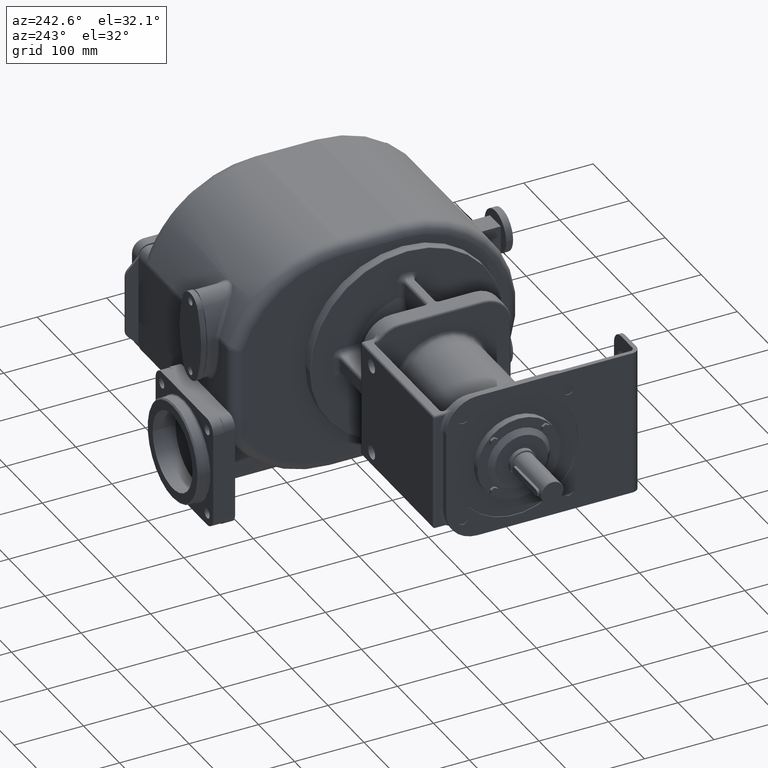
[diagram: clean part render]
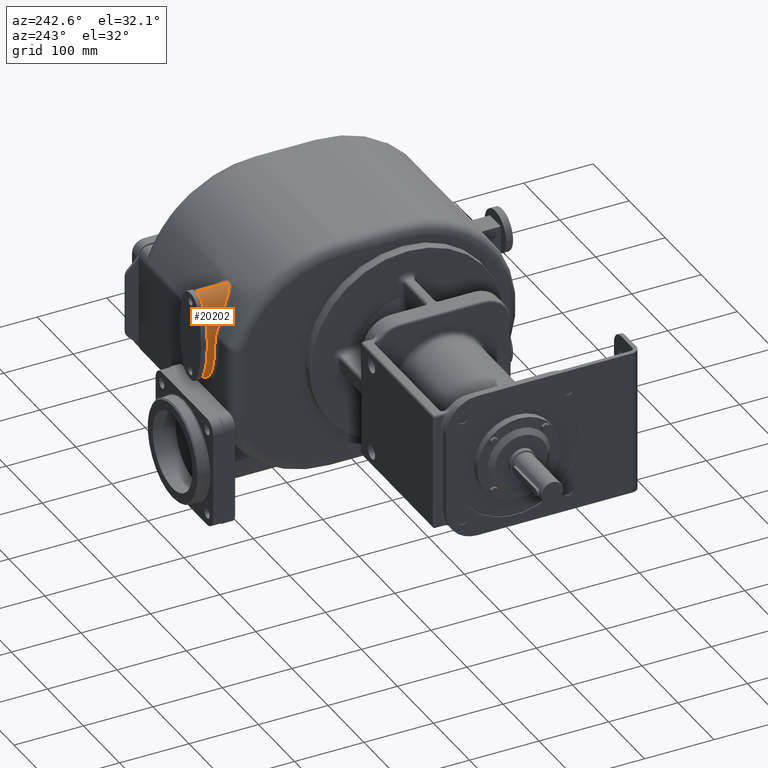
[diagram: same view with one face highlighted and labeled with its STEP entity id]
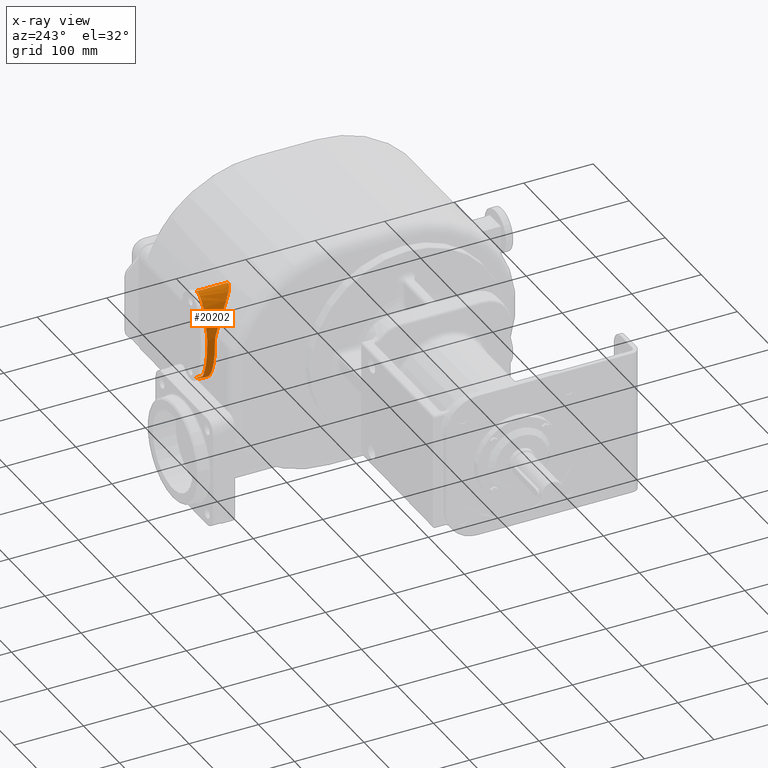
[diagram: x-ray of the same camera — body ghosted, the highlighted face saturated]
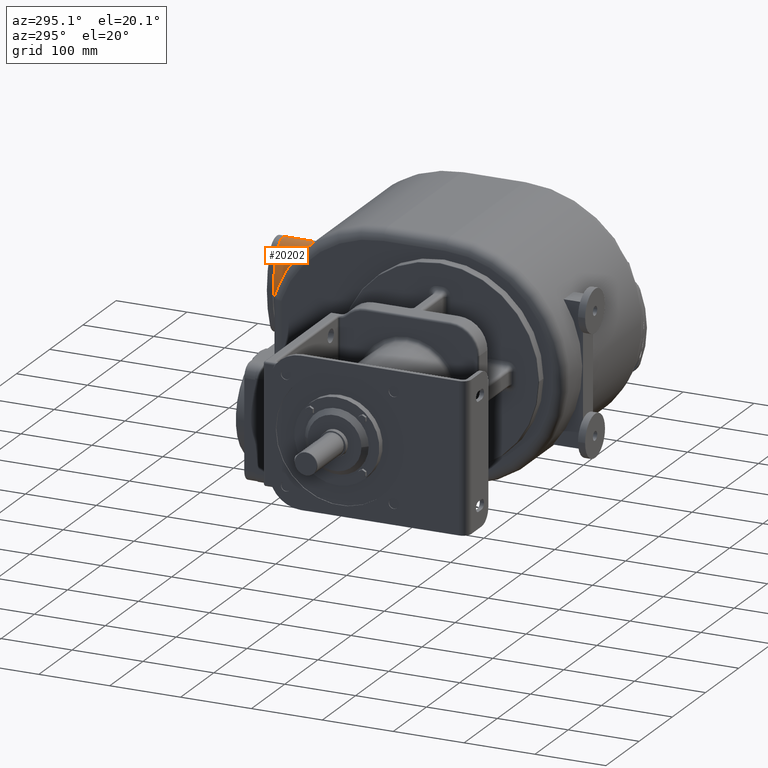
[diagram: same view with one face highlighted and labeled with its STEP entity id]
A machine part, auxiliary view. The second image highlights one B-rep face of the part: STEP entity #20202.
The next image is the same camera in x-ray: the body ghosted, the highlighted face saturated — about 0% of this face is hidden behind the body in this view.
A second angle (auxiliary view) of the same face is appended — the face is thin or edge-on in the first view.
In plain terms, the highlighted face is a SurfaceOfExtrusion surface.
Its self-contained STEP definition (entity closure, byte-faithful):
#5250=CARTESIAN_POINT('',(-2.959127350150E1,4.180277563773E2,5.369300654447E1));
#5251=CARTESIAN_POINT('',(-2.953547731915E1,4.177794050641E2,5.441790817019E1));
#5252=CARTESIAN_POINT('',(-2.941250789738E1,4.172724683833E2,5.586383989972E1));
#5253=CARTESIAN_POINT('',(-2.919407153236E1,4.164821647968E2,5.801925154103E1));
#5254=CARTESIAN_POINT('',(-2.894191263813E1,4.156632165754E2,6.015799064301E1));
#5255=CARTESIAN_POINT('',(-2.865634146213E1,4.148169051282E2,6.227726614286E1));
#5256=CARTESIAN_POINT('',(-2.833773882775E1,4.139446090409E2,6.437419904726E1));
#5257=CARTESIAN_POINT('',(-2.798653758930E1,4.130479190375E2,6.644604693218E1));
#5258=CARTESIAN_POINT('',(-2.760318697061E1,4.121285224983E2,6.849031987056E1));
#5259=CARTESIAN_POINT('',(-2.718828013296E1,4.111884039467E2,7.050406057810E1));
#5260=CARTESIAN_POINT('',(-2.674289735316E1,4.102304926898E2,7.248264154252E1));
#5261=CARTESIAN_POINT('',(-2.626824763129E1,4.092577993437E2,7.442191021712E1));
#5262=CARTESIAN_POINT('',(-2.576535654304E1,4.082729788011E2,7.631915051693E1));
#5263=CARTESIAN_POINT('',(-2.523537641659E1,4.072787984379E2,7.817158770588E1));
#5264=CARTESIAN_POINT('',(-2.467956279720E1,4.062780634538E2,7.997655455188E1));
#5265=CARTESIAN_POINT('',(-2.409933340986E1,4.052737923284E2,8.173130897729E1));
#5266=CARTESIAN_POINT('',(-2.349652269954E1,4.042697900355E2,8.343243807606E1));
#5267=CARTESIAN_POINT('',(-2.287316109284E1,4.032698655736E2,8.507670507127E1));
#5268=CARTESIAN_POINT('',(-2.223156519487E1,4.022779152928E2,8.666086146402E1));
#5269=CARTESIAN_POINT('',(-2.157415864846E1,4.012978248948E2,8.818215672986E1));
#5270=CARTESIAN_POINT('',(-2.090342222491E1,4.003335122164E2,8.963838701122E1));
#5271=CARTESIAN_POINT('',(-2.022209026508E1,3.993888025004E2,9.102742554513E1));
#5272=CARTESIAN_POINT('',(-1.953340959060E1,3.984676577245E2,9.234686959138E1));
#5273=CARTESIAN_POINT('',(-1.883965760985E1,3.975726752964E2,9.359681714817E1));
#5274=CARTESIAN_POINT('',(-1.814258063415E1,3.967057622274E2,9.477846890317E1));
#5275=CARTESIAN_POINT('',(-1.744418444779E1,3.958687681379E2,9.589267497383E1));
#5276=CARTESIAN_POINT('',(-1.674647276695E1,3.950630834828E2,9.694044627662E1));
#5277=CARTESIAN_POINT('',(-1.605221929910E1,3.942912084144E2,9.792187148024E1));
#5278=CARTESIAN_POINT('',(-1.536484234584E1,3.935560943852E2,9.883666181759E1));
#5279=CARTESIAN_POINT('',(-1.468631678839E1,3.928585148535E2,9.968683948255E1));
#5280=CARTESIAN_POINT('',(-1.401862055296E1,3.921987872934E2,1.004744822760E2));
#5281=CARTESIAN_POINT('',(-1.336288926813E1,3.915765484495E2,1.012026722612E2));
#5282=CARTESIAN_POINT('',(-1.271993108675E1,3.909915056442E2,1.018746676156E2));
#5283=CARTESIAN_POINT('',(-1.209076685045E1,3.904431240749E2,1.024933368134E2));
#5284=CARTESIAN_POINT('',(-1.147647685030E1,3.899307316574E2,1.030613927547E2));
#5285=CARTESIAN_POINT('',(-1.087795355558E1,3.894531481219E2,1.035816390387E2));
#5286=CARTESIAN_POINT('',(-1.029551819477E1,3.890093463393E2,1.040572211045E2));
#5287=CARTESIAN_POINT('',(-9.729585948869E0,3.885983805573E2,1.044910146138E2));
#5288=CARTESIAN_POINT('',(-9.179903069087E0,3.882186063868E2,1.048862075701E2));
#5289=CARTESIAN_POINT('',(-8.645869005953E0,3.878681395808E2,1.052459503320E2));
#5290=CARTESIAN_POINT('',(-8.126656010431E0,3.875449625093E2,1.055732301116E2));
#5291=CARTESIAN_POINT('',(-7.622408111086E0,3.872477989221E2,1.058701847816E2));
#5292=CARTESIAN_POINT('',(-7.133324048029E0,3.869757490403E2,1.061388207522E2));
#5293=CARTESIAN_POINT('',(-6.659360035865E0,3.867276193994E2,1.063811772179E2));
#5294=CARTESIAN_POINT('',(-6.199312135897E0,3.865016564328E2,1.065996985310E2));
#5295=CARTESIAN_POINT('',(-5.751813612489E0,3.862961566022E2,1.067966239521E2));
#5296=CARTESIAN_POINT('',(-5.314991002102E0,3.861093649653E2,1.069741124538E2));
#5297=CARTESIAN_POINT('',(-4.888380802136E0,3.859402954536E2,1.071335002740E2));
#5298=CARTESIAN_POINT('',(-4.471940760248E0,3.857880651916E2,1.072758904942E2));
#5299=CARTESIAN_POINT('',(-4.065520460429E0,3.856518248275E2,1.074023683167E2));
#5300=CARTESIAN_POINT('',(-3.668590770231E0,3.855306623410E2,1.075140627771E2));
#5301=CARTESIAN_POINT('',(-3.280047006425E0,3.854236039345E2,1.076121367150E2));
#5302=CARTESIAN_POINT('',(-2.898702469705E0,3.853298022805E2,1.076976124634E2));
#5303=CARTESIAN_POINT('',(-2.523038362179E0,3.852484912524E2,1.077714128514E2));
#5304=CARTESIAN_POINT('',(-2.152171558388E0,3.851792098426E2,1.078341713163E2));
#5305=CARTESIAN_POINT('',(-1.785686472190E0,3.851216331612E2,1.078863585360E2));
#5306=CARTESIAN_POINT('',(-1.423091178117E0,3.850751666986E2,1.079283990381E2));
#5307=CARTESIAN_POINT('',(-1.063853330627E0,3.850394128378E2,1.079606618174E2));
#5308=CARTESIAN_POINT('',(-7.073402477227E-1,3.850139563523E2,
1.079834471729E2));
#5309=CARTESIAN_POINT('',(-3.529718520219E-1,3.849988726882E2,
1.079970199175E2));
#5310=CARTESIAN_POINT('',(-1.174863340934E-1,3.849949115535E2,
1.079999725309E2));
#5311=CARTESIAN_POINT('',(0.E0,3.849948209448E2,1.08E2));
#5313=CARTESIAN_POINT('',(-2.991598029119E1,4.189999999994E2,4.786161405910E1));
#5314=CARTESIAN_POINT('',(-2.990973077321E1,4.189999561263E2,4.804223551395E1));
#5315=CARTESIAN_POINT('',(-2.989652112312E1,4.189940599213E2,4.840302011867E1));
#5316=CARTESIAN_POINT('',(-2.987469619031E1,4.189697363214E2,4.894292556024E1));
#5317=CARTESIAN_POINT('',(-2.985084388433E1,4.189291419110E2,4.948111985827E1));
#5318=CARTESIAN_POINT('',(-2.982500634066E1,4.188725903222E2,5.001731603987E1));
#5319=CARTESIAN_POINT('',(-2.979721502010E1,4.188000636789E2,5.055119624389E1));
#5320=CARTESIAN_POINT('',(-2.976751084707E1,4.187116027509E2,5.108243487979E1));
#5321=CARTESIAN_POINT('',(-2.973593244029E1,4.186071774466E2,5.161079805599E1));
#5322=CARTESIAN_POINT('',(-2.970251270218E1,4.184868397560E2,5.213620450278E1));
#5323=CARTESIAN_POINT('',(-2.966728350822E1,4.183506229650E2,5.265854781615E1));
#5324=CARTESIAN_POINT('',(-2.963029153513E1,4.181984661024E2,5.317770967500E1));
#5325=CARTESIAN_POINT('',(-2.960445551251E1,4.180864676228E2,5.352162032648E1));
#5326=CARTESIAN_POINT('',(-2.959126423860E1,4.180277563774E2,5.369300583161E1));
#5328=CARTESIAN_POINT('',(0.E0,4.19E2,-2.2E1));
#5329=CARTESIAN_POINT('',(-5.142688421279E-1,4.19E2,-2.2E1));
#5330=CARTESIAN_POINT('',(-1.542806457136E0,4.19E2,-2.194268500738E1));
#5331=CARTESIAN_POINT('',(-3.081533536568E0,4.19E2,-2.168499486401E1));
#5332=CARTESIAN_POINT('',(-4.612112590105E0,4.19E2,-2.125626843543E1));
#5333=CARTESIAN_POINT('',(-6.130496568917E0,4.19E2,-2.065763933503E1));
#5334=CARTESIAN_POINT('',(-7.632670645709E0,4.19E2,-1.989069042290E1));
#5335=CARTESIAN_POINT('',(-9.114662860886E0,4.19E2,-1.895744962056E1));
#5336=CARTESIAN_POINT('',(-1.057255461683E1,4.19E2,-1.786038454883E1));
#5337=CARTESIAN_POINT('',(-1.200249104142E1,4.19E2,-1.660239600309E1));
#5338=CARTESIAN_POINT('',(-1.340069118024E1,4.19E2,-1.518681028318E1));
#5339=CARTESIAN_POINT('',(-1.476345799418E1,4.19E2,-1.361737039818E1));
#5340=CARTESIAN_POINT('',(-1.608718813481E1,4.19E2,-1.189822616936E1));
#5341=CARTESIAN_POINT('',(-1.736838147221E1,4.19E2,-1.003392325747E1));
#5342=CARTESIAN_POINT('',(-1.860365034981E1,4.19E2,-8.029391143378E0));
#5343=CARTESIAN_POINT('',(-1.978972854178E1,4.19E2,-5.889930093824E0));
#5344=CARTESIAN_POINT('',(-2.092347988944E1,4.19E2,-3.621197146747E0));
#5345=CARTESIAN_POINT('',(-2.200190659371E1,4.19E2,-1.229191153290E0));
#5346=CARTESIAN_POINT('',(-2.302215714168E1,4.19E2,1.279763084015E0));
#5347=CARTESIAN_POINT('',(-2.398153384644E1,4.19E2,3.899031534919E0));
#5348=CARTESIAN_POINT('',(-2.487749998016E1,4.19E2,6.621688482776E0));
#5349=CARTESIAN_POINT('',(-2.570768648151E1,4.19E2,9.440534837111E0));
#5350=CARTESIAN_POINT('',(-2.646989821983E1,4.19E2,1.234811716904E1));
#5351=CARTESIAN_POINT('',(-2.716211979937E1,4.19E2,1.533674741920E1));
#5352=CARTESIAN_POINT('',(-2.778252088826E1,4.19E2,1.839852322603E1));
#5353=CARTESIAN_POINT('',(-2.832946105818E1,4.19E2,2.152534882080E1));
#5354=CARTESIAN_POINT('',(-2.880149412188E1,4.19E2,2.470895643390E1));
#5355=CARTESIAN_POINT('',(-2.919737195709E1,4.19E2,2.794092815598E1));
#5356=CARTESIAN_POINT('',(-2.951604780677E1,4.19E2,3.121271819641E1));
#5357=CARTESIAN_POINT('',(-2.975667904688E1,4.19E2,3.451567547828E1));
#5358=CARTESIAN_POINT('',(-2.991862941424E1,4.19E2,3.784106651779E1));
#5359=CARTESIAN_POINT('',(-3.000147068953E1,4.19E2,4.118009849926E1));
#5360=CARTESIAN_POINT('',(-3.000498382728E1,4.19E2,4.452394259019E1));
#5361=CARTESIAN_POINT('',(-2.995443430477E1,4.19E2,4.675048555735E1));
#5362=CARTESIAN_POINT('',(-2.991597005168E1,4.19E2,4.786161370532E1));
#5364=DIRECTION('',(1.686121255921E-9,-9.999999999961E-1,2.806934322620E-6));
#5365=VECTOR('',#5364,1.100000000004E1);
#5366=CARTESIAN_POINT('',(0.E0,4.3E2,-2.2E1));
#5367=LINE('',#5366,#5365);
#5482=DIRECTION('',(-4.071510571500E-10,-9.999999999980E-1,-1.977666413448E-6));
#5483=VECTOR('',#5482,4.500517906140E1);
#5484=CARTESIAN_POINT('',(0.E0,4.3E2,1.08E2));
#5485=LINE('',#5484,#5483);
#9307=CARTESIAN_POINT('',(0.E0,4.3E2,-2.2E1));
#9308=CARTESIAN_POINT('',(-4.419417382416E-1,4.3E2,-2.2E1));
#9309=CARTESIAN_POINT('',(-1.333926503415E0,4.3E2,-2.195767154489E1));
#9310=CARTESIAN_POINT('',(-2.692788577442E0,4.3E2,-2.176041420809E1));
#9311=CARTESIAN_POINT('',(-4.068718008403E0,4.3E2,-2.142308598176E1));
#9312=CARTESIAN_POINT('',(-5.457509908804E0,4.3E2,-2.093997768547E1));
#9313=CARTESIAN_POINT('',(-6.854591790566E0,4.3E2,-2.030609695883E1));
#9314=CARTESIAN_POINT('',(-8.255052162090E0,4.3E2,-1.951728788588E1));
#9315=CARTESIAN_POINT('',(-9.653678233238E0,4.3E2,-1.857034519058E1));
#9316=CARTESIAN_POINT('',(-1.104500265371E1,4.3E2,-1.746311990007E1));
#9317=CARTESIAN_POINT('',(-1.242335887307E1,4.3E2,-1.619461262350E1));
#9318=CARTESIAN_POINT('',(-1.378294435028E1,4.3E2,-1.476505083105E1));
#9319=CARTESIAN_POINT('',(-1.511789047591E1,4.3E2,-1.317594671589E1));
#9320=CARTESIAN_POINT('',(-1.642233772354E1,4.3E2,-1.143013266690E1));
#9321=CARTESIAN_POINT('',(-1.769051423924E1,4.3E2,-9.531771991789E0));
#9322=CARTESIAN_POINT('',(-1.891681583359E1,4.3E2,-7.486343308459E0));
#9323=CARTESIAN_POINT('',(-2.009588517825E1,4.3E2,-5.300597928565E0));
#9324=CARTESIAN_POINT('',(-2.122268794400E1,4.3E2,-2.982490545328E0));
#9325=CARTESIAN_POINT('',(-2.229258365934E1,4.3E2,-5.410845528766E-1));
#9326=CARTESIAN_POINT('',(-2.330138921929E1,4.3E2,2.013565693879E0));
#9327=CARTESIAN_POINT('',(-2.424543322699E1,4.3E2,4.670552481661E0));
#9328=CARTESIAN_POINT('',(-2.512159969238E1,4.3E2,7.418268265583E0));
#9329=CARTESIAN_POINT('',(-2.592736002284E1,4.3E2,1.024457063580E1));
#9330=CARTESIAN_POINT('',(-2.666079269080E1,4.3E2,1.313695390674E1));
#9331=CARTESIAN_POINT('',(-2.732059044332E1,4.3E2,1.608272244540E1));
#9332=CARTESIAN_POINT('',(-2.790605533214E1,4.3E2,1.906916090307E1));
#9333=CARTESIAN_POINT('',(-2.841708241936E1,4.3E2,2.208369721319E1));
#9334=CARTESIAN_POINT('',(-2.885413278193E1,4.3E2,2.511405345521E1));
#9335=CARTESIAN_POINT('',(-2.921819892659E1,4.3E2,2.814838517628E1));
#9336=CARTESIAN_POINT('',(-2.946199790394E1,4.3E2,3.067089128034E1));
#9337=CARTESIAN_POINT('',(-2.962224714508E1,4.3E2,3.267992343977E1));
#9338=CARTESIAN_POINT('',(-2.972532079285E1,4.3E2,3.418095874602E1));
#9339=CARTESIAN_POINT('',(-2.981157852382E1,4.3E2,3.567503878313E1));
#9340=CARTESIAN_POINT('',(-2.988134022706E1,4.3E2,3.716100020774E1));
#9341=CARTESIAN_POINT('',(-2.992601013638E1,4.3E2,3.839160803945E1));
#9342=CARTESIAN_POINT('',(-2.995384517212E1,4.3E2,3.937094880650E1));
#9343=CARTESIAN_POINT('',(-2.997081712612E1,4.3E2,4.010275481806E1));
#9344=CARTESIAN_POINT('',(-2.998393153041E1,4.3E2,4.083173670329E1));
#9345=CARTESIAN_POINT('',(-2.999168532315E1,4.3E2,4.143676807519E1));
#9346=CARTESIAN_POINT('',(-2.999600768467E1,4.3E2,4.191926109049E1));
#9347=CARTESIAN_POINT('',(-2.999831526277E1,4.3E2,4.228035376184E1));
#9348=CARTESIAN_POINT('',(-2.999946489621E1,4.3E2,4.258059386204E1));
#9349=CARTESIAN_POINT('',(-2.999992370597E1,4.3E2,4.282040166664E1));
#9350=CARTESIAN_POINT('',(-3.000003814702E1,4.3E2,4.3E1));
#9351=CARTESIAN_POINT('',(-2.999992370597E1,4.3E2,4.317959833336E1));
#9352=CARTESIAN_POINT('',(-2.999946489621E1,4.3E2,4.341940613796E1));
#9353=CARTESIAN_POINT('',(-2.999831526277E1,4.3E2,4.371964623816E1));
#9354=CARTESIAN_POINT('',(-2.999600768467E1,4.3E2,4.408073890951E1));
#9355=CARTESIAN_POINT('',(-2.999168532315E1,4.3E2,4.456323192481E1));
#9356=CARTESIAN_POINT('',(-2.998393153041E1,4.3E2,4.516826329671E1));
#9357=CARTESIAN_POINT('',(-2.997081712612E1,4.3E2,4.589724518194E1));
#9358=CARTESIAN_POINT('',(-2.995384517212E1,4.3E2,4.662905119350E1));
#9359=CARTESIAN_POINT('',(-2.992601013638E1,4.3E2,4.760839196055E1));
#9360=CARTESIAN_POINT('',(-2.988134022706E1,4.3E2,4.883899979226E1));
#9361=CARTESIAN_POINT('',(-2.981157852382E1,4.3E2,5.032496121687E1));
#9362=CARTESIAN_POINT('',(-2.972532079285E1,4.3E2,5.181904125398E1));
#9363=CARTESIAN_POINT('',(-2.962224714508E1,4.3E2,5.332007656023E1));
#9364=CARTESIAN_POINT('',(-2.946199790394E1,4.3E2,5.532910871966E1));
#9365=CARTESIAN_POINT('',(-2.921819892659E1,4.3E2,5.785161482372E1));
#9366=CARTESIAN_POINT('',(-2.885413278193E1,4.3E2,6.088594654479E1));
#9367=CARTESIAN_POINT('',(-2.841708241936E1,4.3E2,6.391630278681E1));
#9368=CARTESIAN_POINT('',(-2.790605533214E1,4.3E2,6.693083909693E1));
#9369=CARTESIAN_POINT('',(-2.732059044332E1,4.3E2,6.991727755460E1));
#9370=CARTESIAN_POINT('',(-2.666079269080E1,4.3E2,7.286304609326E1));
#9371=CARTESIAN_POINT('',(-2.592736002284E1,4.3E2,7.575542936420E1));
#9372=CARTESIAN_POINT('',(-2.512159969238E1,4.3E2,7.858173173442E1));
#9373=CARTESIAN_POINT('',(-2.424543322699E1,4.3E2,8.132944751834E1));
#9374=CARTESIAN_POINT('',(-2.330138921929E1,4.3E2,8.398643430612E1));
#9375=CARTESIAN_POINT('',(-2.229258365934E1,4.3E2,8.654108455288E1));
#9376=CARTESIAN_POINT('',(-2.122268794400E1,4.3E2,8.898249054533E1));
#9377=CARTESIAN_POINT('',(-2.009588517825E1,4.3E2,9.130059792856E1));
#9378=CARTESIAN_POINT('',(-1.891681583359E1,4.3E2,9.348634330846E1));
#9379=CARTESIAN_POINT('',(-1.769051423924E1,4.3E2,9.553177199179E1));
#9380=CARTESIAN_POINT('',(-1.642233772354E1,4.3E2,9.743013266690E1));
#9381=CARTESIAN_POINT('',(-1.511789047591E1,4.3E2,9.917594671589E1));
#9382=CARTESIAN_POINT('',(-1.378294435028E1,4.3E2,1.007650508311E2));
#9383=CARTESIAN_POINT('',(-1.242335887307E1,4.3E2,1.021946126235E2));
#9384=CARTESIAN_POINT('',(-1.104500265371E1,4.3E2,1.034631199001E2));
#9385=CARTESIAN_POINT('',(-9.653678233238E0,4.3E2,1.045703451906E2));
#9386=CARTESIAN_POINT('',(-8.255052162090E0,4.3E2,1.055172878859E2));
#9387=CARTESIAN_POINT('',(-6.854591790566E0,4.3E2,1.063060969588E2));
#9388=CARTESIAN_POINT('',(-5.457509908804E0,4.3E2,1.069399776855E2));
#9389=CARTESIAN_POINT('',(-4.068718008403E0,4.3E2,1.074230859818E2));
#9390=CARTESIAN_POINT('',(-2.692788577442E0,4.3E2,1.077604142081E2));
#9391=CARTESIAN_POINT('',(-1.333926503415E0,4.3E2,1.079576715449E2));
#9392=CARTESIAN_POINT('',(-4.419417382416E-1,4.3E2,1.08E2));
#9393=CARTESIAN_POINT('',(0.E0,4.3E2,1.08E2));
#11785=VERTEX_POINT('',#9307);
#11786=VERTEX_POINT('',#9393);
#11789=VERTEX_POINT('',#5250);
#11790=VERTEX_POINT('',#5311);
#11792=VERTEX_POINT('',#5313);
#11793=VERTEX_POINT('',#5328);
#20183=CARTESIAN_POINT('',(0.E0,4.3E2,4.3E1));
#20184=DIRECTION('',(0.E0,1.E0,0.E0));
#20185=DIRECTION('',(0.E0,0.E0,-1.E0));
#20186=AXIS2_PLACEMENT_3D('',#20183,#20184,#20185);
#20188=DIRECTION('',(0.E0,1.E0,0.E0));
#20189=VECTOR('',#20188,1.E0);
#20190=SURFACE_OF_LINEAR_EXTRUSION('',#20187,#20189);
#20191=ORIENTED_EDGE('',*,*,#20015,.F.);
#20192=ORIENTED_EDGE('',*,*,#20047,.F.);
#20193=ORIENTED_EDGE('',*,*,#20174,.F.);
#20195=ORIENTED_EDGE('',*,*,#20194,.F.);
#20197=ORIENTED_EDGE('',*,*,#20196,.T.);
#20199=ORIENTED_EDGE('',*,*,#20198,.T.);
#20200=EDGE_LOOP('',(#20191,#20192,#20193,#20195,#20197,#20199));
#20201=FACE_OUTER_BOUND('',#20200,.F.);
#20202=ADVANCED_FACE('',(#20201),#20190,.T.);
#5312=B_SPLINE_CURVE_WITH_KNOTS('',3,(#5250,#5251,#5252,#5253,#5254,#5255,#5256,
#5257,#5258,#5259,#5260,#5261,#5262,#5263,#5264,#5265,#5266,#5267,#5268,#5269,
#5270,#5271,#5272,#5273,#5274,#5275,#5276,#5277,#5278,#5279,#5280,#5281,#5282,
#5283,#5284,#5285,#5286,#5287,#5288,#5289,#5290,#5291,#5292,#5293,#5294,#5295,
#5296,#5297,#5298,#5299,#5300,#5301,#5302,#5303,#5304,#5305,#5306,#5307,#5308,
#5309,#5310,#5311),.UNSPECIFIED.,.F.,.F.,(4,1,1,1,1,1,1,1,1,1,1,1,1,1,1,1,1,1,1,
1,1,1,1,1,1,1,1,1,1,1,1,1,1,1,1,1,1,1,1,1,1,1,1,1,1,1,1,1,1,1,1,1,1,1,1,1,1,1,1,
4),(0.E0,1.694915254237E-2,3.389830508475E-2,5.084745762712E-2,
6.779661016949E-2,8.474576271186E-2,1.016949152542E-1,1.186440677966E-1,
1.355932203390E-1,1.525423728814E-1,1.694915254237E-1,1.864406779661E-1,
2.033898305085E-1,2.203389830508E-1,2.372881355932E-1,2.542372881356E-1,
2.711864406780E-1,2.881355932203E-1,3.050847457627E-1,3.220338983051E-1,
3.389830508475E-1,3.559322033898E-1,3.728813559322E-1,3.898305084746E-1,
4.067796610169E-1,4.237288135593E-1,4.406779661017E-1,4.576271186441E-1,
4.745762711864E-1,4.915254237288E-1,5.084745762712E-1,5.254237288136E-1,
5.423728813559E-1,5.593220338983E-1,5.762711864407E-1,5.932203389831E-1,
6.101694915254E-1,6.271186440678E-1,6.440677966102E-1,6.610169491525E-1,
6.779661016949E-1,6.949152542373E-1,7.118644067797E-1,7.288135593220E-1,
7.457627118644E-1,7.627118644068E-1,7.796610169492E-1,7.966101694915E-1,
8.135593220339E-1,8.305084745763E-1,8.474576271186E-1,8.644067796610E-1,
8.813559322034E-1,8.983050847458E-1,9.152542372881E-1,9.322033898305E-1,
9.491525423729E-1,9.661016949153E-1,9.830508474576E-1,1.E0),.UNSPECIFIED.);
#5327=B_SPLINE_CURVE_WITH_KNOTS('',3,(#5313,#5314,#5315,#5316,#5317,#5318,#5319,
#5320,#5321,#5322,#5323,#5324,#5325,#5326),.UNSPECIFIED.,.F.,.F.,(4,1,1,1,1,1,1,
1,1,1,1,4),(0.E0,9.090909090909E-2,1.818181818182E-1,2.727272727273E-1,
3.636363636364E-1,4.545454545455E-1,5.454545454545E-1,6.363636363636E-1,
7.272727272727E-1,8.181818181818E-1,9.090909090909E-1,1.E0),.UNSPECIFIED.);
#5363=B_SPLINE_CURVE_WITH_KNOTS('',3,(#5328,#5329,#5330,#5331,#5332,#5333,#5334,
#5335,#5336,#5337,#5338,#5339,#5340,#5341,#5342,#5343,#5344,#5345,#5346,#5347,
#5348,#5349,#5350,#5351,#5352,#5353,#5354,#5355,#5356,#5357,#5358,#5359,#5360,
#5361,#5362),.UNSPECIFIED.,.F.,.F.,(4,1,1,1,1,1,1,1,1,1,1,1,1,1,1,1,1,1,1,1,1,1,
1,1,1,1,1,1,1,1,1,1,4),(0.E0,3.125E-2,6.25E-2,9.375E-2,1.25E-1,1.5625E-1,
1.875E-1,2.1875E-1,2.5E-1,2.8125E-1,3.125E-1,3.4375E-1,3.75E-1,4.0625E-1,
4.375E-1,4.6875E-1,5.E-1,5.3125E-1,5.625E-1,5.9375E-1,6.25E-1,6.5625E-1,
6.875E-1,7.1875E-1,7.5E-1,7.8125E-1,8.125E-1,8.4375E-1,8.75E-1,9.0625E-1,
9.375E-1,9.6875E-1,1.E0),.UNSPECIFIED.);
#9394=B_SPLINE_CURVE_WITH_KNOTS('',3,(#9307,#9308,#9309,#9310,#9311,#9312,#9313,
#9314,#9315,#9316,#9317,#9318,#9319,#9320,#9321,#9322,#9323,#9324,#9325,#9326,
#9327,#9328,#9329,#9330,#9331,#9332,#9333,#9334,#9335,#9336,#9337,#9338,#9339,
#9340,#9341,#9342,#9343,#9344,#9345,#9346,#9347,#9348,#9349,#9350,#9351,#9352,
#9353,#9354,#9355,#9356,#9357,#9358,#9359,#9360,#9361,#9362,#9363,#9364,#9365,
#9366,#9367,#9368,#9369,#9370,#9371,#9372,#9373,#9374,#9375,#9376,#9377,#9378,
#9379,#9380,#9381,#9382,#9383,#9384,#9385,#9386,#9387,#9388,#9389,#9390,#9391,
#9392,#9393),.UNSPECIFIED.,.F.,.F.,(4,1,1,1,1,1,1,1,1,1,1,1,1,1,1,1,1,1,1,1,1,1,
1,1,1,1,1,1,1,1,1,1,1,1,1,1,1,1,1,1,1,1,1,1,1,1,1,1,1,1,1,1,1,1,1,1,1,1,1,1,1,1,
1,1,1,1,1,1,1,1,1,1,1,1,1,1,1,1,1,1,1,1,1,1,4),(0.E0,1.5625E-2,3.125E-2,
4.6875E-2,6.25E-2,7.8125E-2,9.375E-2,1.09375E-1,1.25E-1,1.40625E-1,1.5625E-1,
1.71875E-1,1.875E-1,2.03125E-1,2.1875E-1,2.34375E-1,2.5E-1,2.65625E-1,2.8125E-1,
2.96875E-1,3.125E-1,3.28125E-1,3.4375E-1,3.59375E-1,3.75E-1,3.90625E-1,
4.0625E-1,4.21875E-1,4.375E-1,4.453125E-1,4.53125E-1,4.609375E-1,4.6875E-1,
4.765625E-1,4.8046875E-1,4.84375E-1,4.8828125E-1,4.921875E-1,4.94140625E-1,
4.9609375E-1,4.98046875E-1,4.990234375E-1,5.E-1,5.009765625E-1,5.01953125E-1,
5.0390625E-1,5.05859375E-1,5.078125E-1,5.1171875E-1,5.15625E-1,5.1953125E-1,
5.234375E-1,5.3125E-1,5.390625E-1,5.46875E-1,5.546875E-1,5.625E-1,5.78125E-1,
5.9375E-1,6.09375E-1,6.25E-1,6.40625E-1,6.5625E-1,6.71875E-1,6.875E-1,
7.03125E-1,7.1875E-1,7.34375E-1,7.5E-1,7.65625E-1,7.8125E-1,7.96875E-1,8.125E-1,
8.28125E-1,8.4375E-1,8.59375E-1,8.75E-1,8.90625E-1,9.0625E-1,9.21875E-1,
9.375E-1,9.53125E-1,9.6875E-1,9.84375E-1,1.E0),.UNSPECIFIED.);
#20015=EDGE_CURVE('',#11789,#11790,#5312,.T.);
#20047=EDGE_CURVE('',#11792,#11789,#5327,.T.);
#20174=EDGE_CURVE('',#11793,#11792,#5363,.T.);
#20187=ELLIPSE('',#20186,6.5E1,3.E1);
#20194=EDGE_CURVE('',#11785,#11793,#5367,.T.);
#20196=EDGE_CURVE('',#11785,#11786,#9394,.T.);
#20198=EDGE_CURVE('',#11786,#11790,#5485,.T.);